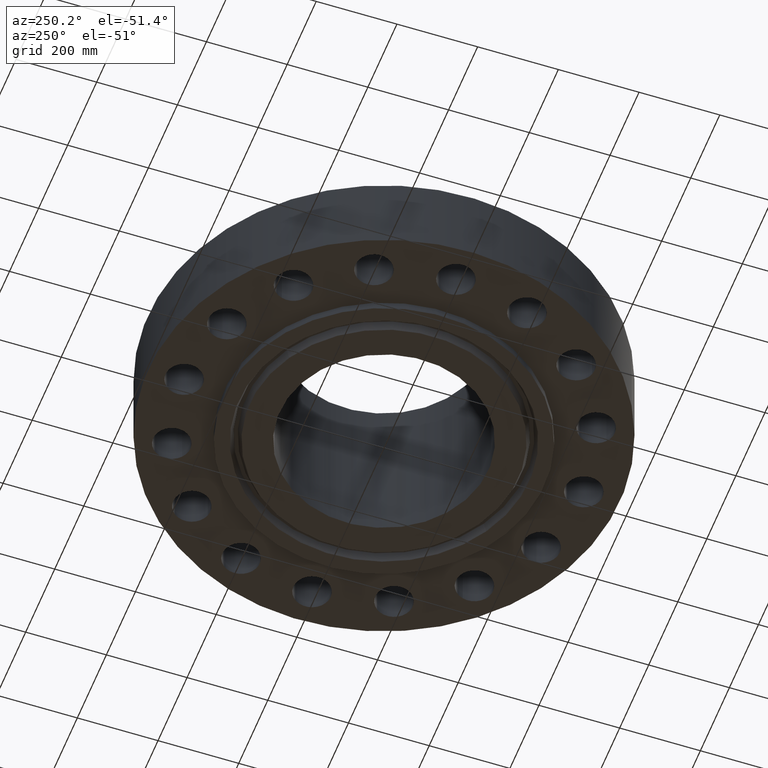
[diagram: clean part render]
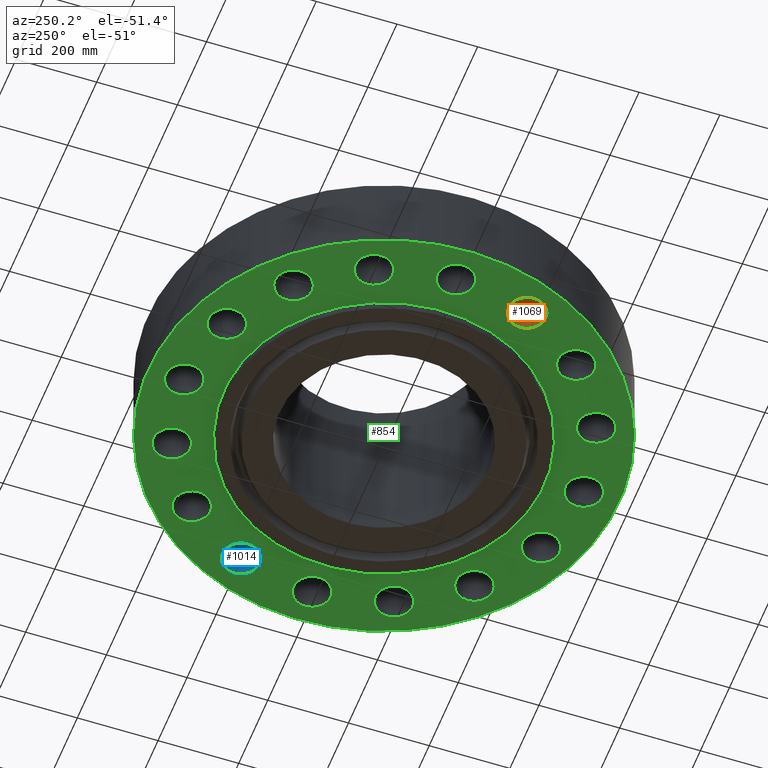
[diagram: same view with three faces highlighted in distinct colors, each labeled with its STEP entity id]
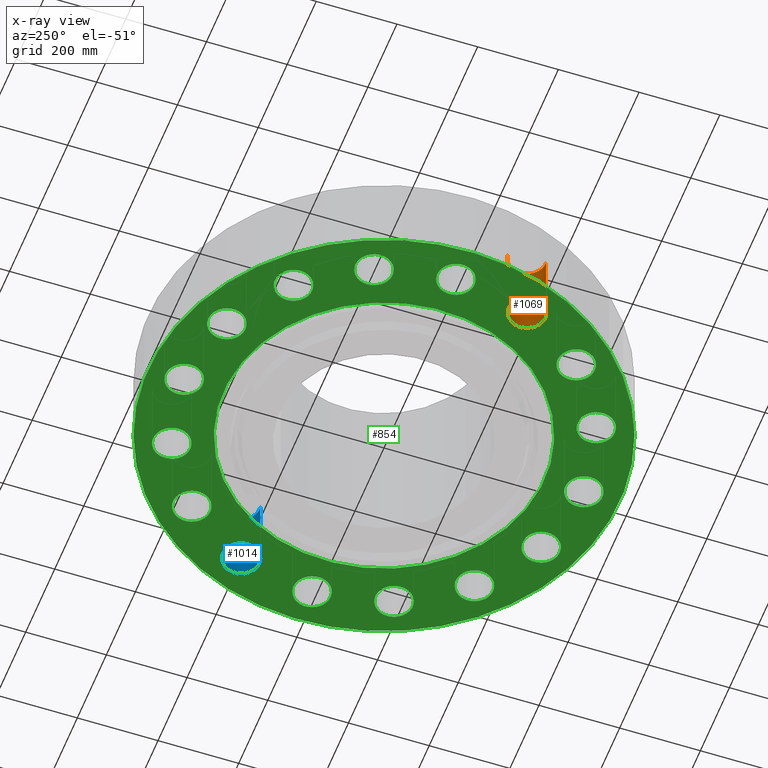
[diagram: x-ray of the same camera — body ghosted, the three highlighted faces saturated]
A machine part, auxiliary view with three faces highlighted in distinct colors.
The next image is the same camera in x-ray (body ghosted, the three faces saturated) — at least one of them is partly hidden behind the body in this view.
Their STEP definitions:

[orange] entity #1069 — the highlighted cylindrical surface (edge-blend (fillet) strip) has radius 46.101 mm, axis along (0, 0, -1).
#775=AXIS2_PLACEMENT_3D('Circle Axis2P3D',#773,#774,$) ;
#1030=AXIS2_PLACEMENT_3D('Cylinder Axis2P3D',#1027,#1028,#1029) ;
#1060=AXIS2_PLACEMENT_3D('Circle Axis2P3D',#1058,#1059,$) ;
#768=CARTESIAN_POINT('Vertex',(-18.210028555,-9.26688846267,0.)) ;
#770=CARTESIAN_POINT('Vertex',(-17.8212732131,-5.65776539962,0.)) ;
#773=CARTESIAN_POINT('Axis2P3D Location',(-18.015650884,-7.46232693115,0.)) ;
#1027=CARTESIAN_POINT('Axis2P3D Location',(-18.015650884,-7.46232693115,7.99606299216)) ;
#1032=CARTESIAN_POINT('Line Origine',(-18.210028555,-9.26688846267,4.00000000002)) ;
#1036=CARTESIAN_POINT('Vertex',(-18.210028555,-9.26688846267,8.00000000003)) ;
#1039=CARTESIAN_POINT('Line Origine',(-17.8212732131,-5.65776539962,4.00000000002)) ;
#1043=CARTESIAN_POINT('Vertex',(-17.8212732131,-5.65776539962,8.00000000003)) ;
#1058=CARTESIAN_POINT('Axis2P3D Location',(-18.015650884,-7.46232693115,8.00000000003)) ;
#774=DIRECTION('Axis2P3D Direction',(0.,0.,-0.0393700787402)) ;
#1028=DIRECTION('Axis2P3D Direction',(0.,0.,-0.0393700787402)) ;
#1029=DIRECTION('Axis2P3D XDirection',(0.00421634391778,0.0391436526652,0.)) ;
#1033=DIRECTION('Vector Direction',(0.,0.,-0.0393700787402)) ;
#1040=DIRECTION('Vector Direction',(0.,0.,-0.0393700787402)) ;
#1059=DIRECTION('Axis2P3D Direction',(0.,0.,-0.0393700787402)) ;
#1034=VECTOR('Line Direction',#1033,0.0393700787402) ;
#1041=VECTOR('Line Direction',#1040,0.0393700787402) ;
#1064=ORIENTED_EDGE('',*,*,#1045,.F.) ;
#1065=ORIENTED_EDGE('',*,*,#777,.T.) ;
#1066=ORIENTED_EDGE('',*,*,#1038,.T.) ;
#1067=ORIENTED_EDGE('',*,*,#1062,.F.) ;
#1069=ADVANCED_FACE('PartBody',(#1068),#1031,.F.) ;
#776=CIRCLE('generated circle',#775,1.81500000001) ;
#1061=CIRCLE('generated circle',#1060,1.81500000001) ;
#1031=CYLINDRICAL_SURFACE('generated cylinder',#1030,1.81500000001) ;
#777=EDGE_CURVE('',#771,#769,#776,.T.) ;
#1038=EDGE_CURVE('',#769,#1037,#1035,.F.) ;
#1045=EDGE_CURVE('',#771,#1044,#1042,.F.) ;
#1062=EDGE_CURVE('',#1044,#1037,#1061,.T.) ;
#1063=EDGE_LOOP('',(#1064,#1065,#1066,#1067)) ;
#1068=FACE_OUTER_BOUND('',#1063,.T.) ;
#1035=LINE('Line',#1032,#1034) ;
#1042=LINE('Line',#1039,#1041) ;
#769=VERTEX_POINT('',#768) ;
#771=VERTEX_POINT('',#770) ;
#1037=VERTEX_POINT('',#1036) ;
#1044=VERTEX_POINT('',#1043) ;

[blue] entity #1014 — the highlighted cylindrical surface (edge-blend (fillet) strip) has radius 46.101 mm, axis along (0, -0, -1).
#622=AXIS2_PLACEMENT_3D('Circle Axis2P3D',#620,#621,$) ;
#987=AXIS2_PLACEMENT_3D('Cylinder Axis2P3D',#984,#985,#986) ;
#1005=AXIS2_PLACEMENT_3D('Circle Axis2P3D',#1003,#1004,$) ;
#620=CARTESIAN_POINT('Axis2P3D Location',(18.015650884,7.46232693115,0.)) ;
#624=CARTESIAN_POINT('Vertex',(18.210028555,9.26688846267,0.)) ;
#626=CARTESIAN_POINT('Vertex',(17.8212732131,5.65776539962,0.)) ;
#984=CARTESIAN_POINT('Axis2P3D Location',(18.015650884,7.46232693115,7.99606299216)) ;
#989=CARTESIAN_POINT('Line Origine',(18.210028555,9.26688846267,4.00000000002)) ;
#993=CARTESIAN_POINT('Vertex',(18.210028555,9.26688846267,8.00000000003)) ;
#996=CARTESIAN_POINT('Line Origine',(17.8212732131,5.65776539962,4.00000000002)) ;
#1000=CARTESIAN_POINT('Vertex',(17.8212732131,5.65776539962,8.00000000003)) ;
#1003=CARTESIAN_POINT('Axis2P3D Location',(18.015650884,7.46232693115,8.00000000003)) ;
#621=DIRECTION('Axis2P3D Direction',(0.,0.,-0.0393700787402)) ;
#985=DIRECTION('Axis2P3D Direction',(0.,-0.,-0.0393700787402)) ;
#986=DIRECTION('Axis2P3D XDirection',(-0.00421634391778,-0.0391436526652,0.)) ;
#990=DIRECTION('Vector Direction',(0.,0.,-0.0393700787402)) ;
#997=DIRECTION('Vector Direction',(0.,0.,-0.0393700787402)) ;
#1004=DIRECTION('Axis2P3D Direction',(0.,-0.,-0.0393700787402)) ;
#991=VECTOR('Line Direction',#990,0.0393700787402) ;
#998=VECTOR('Line Direction',#997,0.0393700787402) ;
#1009=ORIENTED_EDGE('',*,*,#995,.F.) ;
#1010=ORIENTED_EDGE('',*,*,#628,.T.) ;
#1011=ORIENTED_EDGE('',*,*,#1002,.T.) ;
#1012=ORIENTED_EDGE('',*,*,#1007,.F.) ;
#1014=ADVANCED_FACE('PartBody',(#1013),#988,.F.) ;
#623=CIRCLE('generated circle',#622,1.81500000001) ;
#1006=CIRCLE('generated circle',#1005,1.81500000001) ;
#988=CYLINDRICAL_SURFACE('generated cylinder',#987,1.81500000001) ;
#628=EDGE_CURVE('',#625,#627,#623,.T.) ;
#995=EDGE_CURVE('',#625,#994,#992,.F.) ;
#1002=EDGE_CURVE('',#627,#1001,#999,.F.) ;
#1007=EDGE_CURVE('',#994,#1001,#1006,.T.) ;
#1008=EDGE_LOOP('',(#1009,#1010,#1011,#1012)) ;
#1013=FACE_OUTER_BOUND('',#1008,.T.) ;
#992=LINE('Line',#989,#991) ;
#999=LINE('Line',#996,#998) ;
#625=VERTEX_POINT('',#624) ;
#627=VERTEX_POINT('',#626) ;
#994=VERTEX_POINT('',#993) ;
#1001=VERTEX_POINT('',#1000) ;

[green] entity #854 — the highlighted planar face has unit normal (0, 0, -1).
#51=AXIS2_PLACEMENT_3D('Circle Axis2P3D',#49,#50,$) ;
#77=AXIS2_PLACEMENT_3D('Circle Axis2P3D',#75,#76,$) ;
#99=AXIS2_PLACEMENT_3D('Circle Axis2P3D',#97,#98,$) ;
#134=AXIS2_PLACEMENT_3D('Circle Axis2P3D',#132,#133,$) ;
#533=AXIS2_PLACEMENT_3D('Circle Axis2P3D',#531,#532,$) ;
#557=AXIS2_PLACEMENT_3D('Circle Axis2P3D',#555,#556,$) ;
#570=AXIS2_PLACEMENT_3D('Plane Axis2P3D',#567,#568,#569) ;
#586=AXIS2_PLACEMENT_3D('Circle Axis2P3D',#584,#585,$) ;
#595=AXIS2_PLACEMENT_3D('Circle Axis2P3D',#593,#594,$) ;
#604=AXIS2_PLACEMENT_3D('Circle Axis2P3D',#602,#603,$) ;
#613=AXIS2_PLACEMENT_3D('Circle Axis2P3D',#611,#612,$) ;
#622=AXIS2_PLACEMENT_3D('Circle Axis2P3D',#620,#621,$) ;
#631=AXIS2_PLACEMENT_3D('Circle Axis2P3D',#629,#630,$) ;
#640=AXIS2_PLACEMENT_3D('Circle Axis2P3D',#638,#639,$) ;
#649=AXIS2_PLACEMENT_3D('Circle Axis2P3D',#647,#648,$) ;
#658=AXIS2_PLACEMENT_3D('Circle Axis2P3D',#656,#657,$) ;
#667=AXIS2_PLACEMENT_3D('Circle Axis2P3D',#665,#666,$) ;
#676=AXIS2_PLACEMENT_3D('Circle Axis2P3D',#674,#675,$) ;
#685=AXIS2_PLACEMENT_3D('Circle Axis2P3D',#683,#684,$) ;
#694=AXIS2_PLACEMENT_3D('Circle Axis2P3D',#692,#693,$) ;
#703=AXIS2_PLACEMENT_3D('Circle Axis2P3D',#701,#702,$) ;
#712=AXIS2_PLACEMENT_3D('Circle Axis2P3D',#710,#711,$) ;
#721=AXIS2_PLACEMENT_3D('Circle Axis2P3D',#719,#720,$) ;
#730=AXIS2_PLACEMENT_3D('Circle Axis2P3D',#728,#729,$) ;
#739=AXIS2_PLACEMENT_3D('Circle Axis2P3D',#737,#738,$) ;
#748=AXIS2_PLACEMENT_3D('Circle Axis2P3D',#746,#747,$) ;
#757=AXIS2_PLACEMENT_3D('Circle Axis2P3D',#755,#756,$) ;
#766=AXIS2_PLACEMENT_3D('Circle Axis2P3D',#764,#765,$) ;
#775=AXIS2_PLACEMENT_3D('Circle Axis2P3D',#773,#774,$) ;
#784=AXIS2_PLACEMENT_3D('Circle Axis2P3D',#782,#783,$) ;
#793=AXIS2_PLACEMENT_3D('Circle Axis2P3D',#791,#792,$) ;
#802=AXIS2_PLACEMENT_3D('Circle Axis2P3D',#800,#801,$) ;
#811=AXIS2_PLACEMENT_3D('Circle Axis2P3D',#809,#810,$) ;
#820=AXIS2_PLACEMENT_3D('Circle Axis2P3D',#818,#819,$) ;
#829=AXIS2_PLACEMENT_3D('Circle Axis2P3D',#827,#828,$) ;
#838=AXIS2_PLACEMENT_3D('Circle Axis2P3D',#836,#837,$) ;
#847=AXIS2_PLACEMENT_3D('Circle Axis2P3D',#845,#846,$) ;
#44=CARTESIAN_POINT('Vertex',(-1.59281234984,20.3701573526,0.)) ;
#49=CARTESIAN_POINT('Axis2P3D Location',(0.,19.5000000001,0.)) ;
#53=CARTESIAN_POINT('Vertex',(1.59281234984,18.6298426475,0.)) ;
#75=CARTESIAN_POINT('Axis2P3D Location',(0.,19.5000000001,0.)) ;
#97=CARTESIAN_POINT('Axis2P3D Location',(0.,0.,2.23792987641E-015)) ;
#101=CARTESIAN_POINT('Vertex',(-11.0267873879,-20.1843989236,3.35689481461E-015)) ;
#103=CARTESIAN_POINT('Vertex',(11.0267873879,20.1843989236,3.35689481461E-015)) ;
#132=CARTESIAN_POINT('Axis2P3D Location',(0.,0.,2.23792987641E-015)) ;
#528=CARTESIAN_POINT('Vertex',(-7.49102404072,-13.7122275296,3.35689481461E-015)) ;
#531=CARTESIAN_POINT('Axis2P3D Location',(0.,0.,2.23792987641E-015)) ;
#535=CARTESIAN_POINT('Vertex',(7.49102404072,13.7122275296,3.35689481461E-015)) ;
#555=CARTESIAN_POINT('Axis2P3D Location',(0.,0.,2.23792987641E-015)) ;
#567=CARTESIAN_POINT('Axis2P3D Location',(0.,15.6250000001,0.)) ;
#584=CARTESIAN_POINT('Axis2P3D Location',(7.46232693115,18.015650884,0.)) ;
#588=CARTESIAN_POINT('Vertex',(6.32375500438,19.4291143493,0.)) ;
#590=CARTESIAN_POINT('Vertex',(8.60089885792,16.6021874188,0.)) ;
#593=CARTESIAN_POINT('Axis2P3D Location',(7.46232693115,18.015650884,0.)) ;
#602=CARTESIAN_POINT('Axis2P3D Location',(13.7885822332,13.7885822332,0.)) ;
#606=CARTESIAN_POINT('Vertex',(13.2775879842,15.5301648116,0.)) ;
#608=CARTESIAN_POINT('Vertex',(14.2995764822,12.0469996548,0.)) ;
#611=CARTESIAN_POINT('Axis2P3D Location',(13.7885822332,13.7885822332,0.)) ;
#620=CARTESIAN_POINT('Axis2P3D Location',(18.015650884,7.46232693115,0.)) ;
#624=CARTESIAN_POINT('Vertex',(18.210028555,9.26688846267,0.)) ;
#626=CARTESIAN_POINT('Vertex',(17.8212732131,5.65776539962,0.)) ;
#629=CARTESIAN_POINT('Axis2P3D Location',(18.015650884,7.46232693115,0.)) ;
#638=CARTESIAN_POINT('Axis2P3D Location',(19.5000000001,0.,0.)) ;
#642=CARTESIAN_POINT('Vertex',(20.3701573526,1.59281234984,0.)) ;
#644=CARTESIAN_POINT('Vertex',(18.6298426475,-1.59281234984,0.)) ;
#647=CARTESIAN_POINT('Axis2P3D Location',(19.5000000001,0.,0.)) ;
#656=CARTESIAN_POINT('Axis2P3D Location',(18.015650884,-7.46232693115,0.)) ;
#660=CARTESIAN_POINT('Vertex',(19.4291143493,-6.32375500438,0.)) ;
#662=CARTESIAN_POINT('Vertex',(16.6021874188,-8.60089885792,0.)) ;
#665=CARTESIAN_POINT('Axis2P3D Location',(18.015650884,-7.46232693115,0.)) ;
#674=CARTESIAN_POINT('Axis2P3D Location',(13.7885822332,-13.7885822332,0.)) ;
#678=CARTESIAN_POINT('Vertex',(15.5301648116,-13.2775879842,0.)) ;
#680=CARTESIAN_POINT('Vertex',(12.0469996548,-14.2995764822,0.)) ;
#683=CARTESIAN_POINT('Axis2P3D Location',(13.7885822332,-13.7885822332,0.)) ;
#692=CARTESIAN_POINT('Axis2P3D Location',(7.46232693115,-18.015650884,0.)) ;
#696=CARTESIAN_POINT('Vertex',(9.26688846267,-18.210028555,0.)) ;
#698=CARTESIAN_POINT('Vertex',(5.65776539962,-17.8212732131,0.)) ;
#701=CARTESIAN_POINT('Axis2P3D Location',(7.46232693115,-18.015650884,0.)) ;
#710=CARTESIAN_POINT('Axis2P3D Location',(1.81831802458E-015,-19.5000000001,0.)) ;
#714=CARTESIAN_POINT('Vertex',(1.59281234984,-20.3701573526,0.)) ;
#716=CARTESIAN_POINT('Vertex',(-1.59281234984,-18.6298426475,0.)) ;
#719=CARTESIAN_POINT('Axis2P3D Location',(1.67844740731E-015,-19.5000000001,0.)) ;
#728=CARTESIAN_POINT('Axis2P3D Location',(-7.46232693115,-18.015650884,0.)) ;
#732=CARTESIAN_POINT('Vertex',(-6.32375500438,-19.4291143493,0.)) ;
#734=CARTESIAN_POINT('Vertex',(-8.60089885792,-16.6021874188,0.)) ;
#737=CARTESIAN_POINT('Axis2P3D Location',(-7.46232693115,-18.015650884,0.)) ;
#746=CARTESIAN_POINT('Axis2P3D Location',(-13.7885822332,-13.7885822332,0.)) ;
#750=CARTESIAN_POINT('Vertex',(-13.2775879842,-15.5301648116,0.)) ;
#752=CARTESIAN_POINT('Vertex',(-14.2995764822,-12.0469996548,0.)) ;
#755=CARTESIAN_POINT('Axis2P3D Location',(-13.7885822332,-13.7885822332,0.)) ;
#764=CARTESIAN_POINT('Axis2P3D Location',(-18.015650884,-7.46232693115,0.)) ;
#768=CARTESIAN_POINT('Vertex',(-18.210028555,-9.26688846267,0.)) ;
#770=CARTESIAN_POINT('Vertex',(-17.8212732131,-5.65776539962,0.)) ;
#773=CARTESIAN_POINT('Axis2P3D Location',(-18.015650884,-7.46232693115,0.)) ;
#782=CARTESIAN_POINT('Axis2P3D Location',(-19.5000000001,-4.47585975282E-015,0.)) ;
#786=CARTESIAN_POINT('Vertex',(-20.3701573526,-1.59281234984,0.)) ;
#788=CARTESIAN_POINT('Vertex',(-18.6298426475,1.59281234984,0.)) ;
#791=CARTESIAN_POINT('Axis2P3D Location',(-19.5000000001,-4.47585975282E-015,0.)) ;
#800=CARTESIAN_POINT('Axis2P3D Location',(-18.015650884,7.46232693115,0.)) ;
#804=CARTESIAN_POINT('Vertex',(-19.4291143493,6.32375500438,0.)) ;
#806=CARTESIAN_POINT('Vertex',(-16.6021874188,8.60089885792,-6.71378962923E-015)) ;
#809=CARTESIAN_POINT('Axis2P3D Location',(-18.015650884,7.46232693115,0.)) ;
#818=CARTESIAN_POINT('Axis2P3D Location',(-13.7885822332,13.7885822332,0.)) ;
#822=CARTESIAN_POINT('Vertex',(-15.5301648116,13.2775879842,0.)) ;
#824=CARTESIAN_POINT('Vertex',(-12.0469996548,14.2995764822,0.)) ;
#827=CARTESIAN_POINT('Axis2P3D Location',(-13.7885822332,13.7885822332,0.)) ;
#836=CARTESIAN_POINT('Axis2P3D Location',(-7.46232693115,18.015650884,0.)) ;
#840=CARTESIAN_POINT('Vertex',(-9.26688846267,18.210028555,0.)) ;
#842=CARTESIAN_POINT('Vertex',(-5.65776539962,17.8212732131,0.)) ;
#845=CARTESIAN_POINT('Axis2P3D Location',(-7.46232693115,18.015650884,0.)) ;
#50=DIRECTION('Axis2P3D Direction',(0.,-0.,-0.0393700787402)) ;
#76=DIRECTION('Axis2P3D Direction',(0.,-0.,-0.0393700787402)) ;
#98=DIRECTION('Axis2P3D Direction',(0.,0.,-0.0393700787402)) ;
#133=DIRECTION('Axis2P3D Direction',(0.,0.,-0.0393700787402)) ;
#532=DIRECTION('Axis2P3D Direction',(0.,0.,-0.0393700787402)) ;
#556=DIRECTION('Axis2P3D Direction',(0.,0.,-0.0393700787402)) ;
#568=DIRECTION('Axis2P3D Direction',(0.,0.,-0.0393700787402)) ;
#569=DIRECTION('Axis2P3D XDirection',(0.0393700787402,0.,0.)) ;
#585=DIRECTION('Axis2P3D Direction',(0.,0.,-0.0393700787402)) ;
#594=DIRECTION('Axis2P3D Direction',(0.,0.,-0.0393700787402)) ;
#603=DIRECTION('Axis2P3D Direction',(0.,0.,-0.0393700787402)) ;
#612=DIRECTION('Axis2P3D Direction',(0.,0.,-0.0393700787402)) ;
#621=DIRECTION('Axis2P3D Direction',(0.,0.,-0.0393700787402)) ;
#630=DIRECTION('Axis2P3D Direction',(0.,0.,-0.0393700787402)) ;
#639=DIRECTION('Axis2P3D Direction',(0.,0.,-0.0393700787402)) ;
#648=DIRECTION('Axis2P3D Direction',(0.,0.,-0.0393700787402)) ;
#657=DIRECTION('Axis2P3D Direction',(0.,0.,-0.0393700787402)) ;
#666=DIRECTION('Axis2P3D Direction',(0.,0.,-0.0393700787402)) ;
#675=DIRECTION('Axis2P3D Direction',(0.,0.,-0.0393700787402)) ;
#684=DIRECTION('Axis2P3D Direction',(0.,0.,-0.0393700787402)) ;
#693=DIRECTION('Axis2P3D Direction',(0.,0.,-0.0393700787402)) ;
#702=DIRECTION('Axis2P3D Direction',(0.,0.,-0.0393700787402)) ;
#711=DIRECTION('Axis2P3D Direction',(0.,0.,-0.0393700787402)) ;
#720=DIRECTION('Axis2P3D Direction',(0.,0.,-0.0393700787402)) ;
#729=DIRECTION('Axis2P3D Direction',(0.,0.,-0.0393700787402)) ;
#738=DIRECTION('Axis2P3D Direction',(0.,0.,-0.0393700787402)) ;
#747=DIRECTION('Axis2P3D Direction',(0.,0.,-0.0393700787402)) ;
#756=DIRECTION('Axis2P3D Direction',(0.,0.,-0.0393700787402)) ;
#765=DIRECTION('Axis2P3D Direction',(0.,0.,-0.0393700787402)) ;
#774=DIRECTION('Axis2P3D Direction',(0.,0.,-0.0393700787402)) ;
#783=DIRECTION('Axis2P3D Direction',(0.,0.,-0.0393700787402)) ;
#792=DIRECTION('Axis2P3D Direction',(0.,0.,-0.0393700787402)) ;
#801=DIRECTION('Axis2P3D Direction',(0.,0.,-0.0393700787402)) ;
#810=DIRECTION('Axis2P3D Direction',(0.,0.,-0.0393700787402)) ;
#819=DIRECTION('Axis2P3D Direction',(0.,0.,-0.0393700787402)) ;
#828=DIRECTION('Axis2P3D Direction',(0.,0.,-0.0393700787402)) ;
#837=DIRECTION('Axis2P3D Direction',(0.,0.,-0.0393700787402)) ;
#846=DIRECTION('Axis2P3D Direction',(0.,0.,-0.0393700787402)) ;
#573=ORIENTED_EDGE('',*,*,#105,.T.) ;
#574=ORIENTED_EDGE('',*,*,#136,.T.) ;
#577=ORIENTED_EDGE('',*,*,#79,.F.) ;
#578=ORIENTED_EDGE('',*,*,#55,.F.) ;
#581=ORIENTED_EDGE('',*,*,#559,.F.) ;
#582=ORIENTED_EDGE('',*,*,#537,.F.) ;
#599=ORIENTED_EDGE('',*,*,#592,.F.) ;
#600=ORIENTED_EDGE('',*,*,#597,.F.) ;
#617=ORIENTED_EDGE('',*,*,#610,.F.) ;
#618=ORIENTED_EDGE('',*,*,#615,.F.) ;
#635=ORIENTED_EDGE('',*,*,#628,.F.) ;
#636=ORIENTED_EDGE('',*,*,#633,.F.) ;
#653=ORIENTED_EDGE('',*,*,#646,.F.) ;
#654=ORIENTED_EDGE('',*,*,#651,.F.) ;
#671=ORIENTED_EDGE('',*,*,#664,.F.) ;
#672=ORIENTED_EDGE('',*,*,#669,.F.) ;
#689=ORIENTED_EDGE('',*,*,#682,.F.) ;
#690=ORIENTED_EDGE('',*,*,#687,.F.) ;
#707=ORIENTED_EDGE('',*,*,#700,.F.) ;
#708=ORIENTED_EDGE('',*,*,#705,.F.) ;
#725=ORIENTED_EDGE('',*,*,#718,.F.) ;
#726=ORIENTED_EDGE('',*,*,#723,.F.) ;
#743=ORIENTED_EDGE('',*,*,#736,.F.) ;
#744=ORIENTED_EDGE('',*,*,#741,.F.) ;
#761=ORIENTED_EDGE('',*,*,#754,.F.) ;
#762=ORIENTED_EDGE('',*,*,#759,.F.) ;
#779=ORIENTED_EDGE('',*,*,#772,.F.) ;
#780=ORIENTED_EDGE('',*,*,#777,.F.) ;
#797=ORIENTED_EDGE('',*,*,#790,.F.) ;
#798=ORIENTED_EDGE('',*,*,#795,.F.) ;
#815=ORIENTED_EDGE('',*,*,#808,.F.) ;
#816=ORIENTED_EDGE('',*,*,#813,.F.) ;
#833=ORIENTED_EDGE('',*,*,#826,.F.) ;
#834=ORIENTED_EDGE('',*,*,#831,.F.) ;
#851=ORIENTED_EDGE('',*,*,#844,.F.) ;
#852=ORIENTED_EDGE('',*,*,#849,.F.) ;
#579=FACE_BOUND('',#576,.T.) ;
#583=FACE_BOUND('',#580,.T.) ;
#601=FACE_BOUND('',#598,.T.) ;
#619=FACE_BOUND('',#616,.T.) ;
#637=FACE_BOUND('',#634,.T.) ;
#655=FACE_BOUND('',#652,.T.) ;
#673=FACE_BOUND('',#670,.T.) ;
#691=FACE_BOUND('',#688,.T.) ;
#709=FACE_BOUND('',#706,.T.) ;
#727=FACE_BOUND('',#724,.T.) ;
#745=FACE_BOUND('',#742,.T.) ;
#763=FACE_BOUND('',#760,.T.) ;
#781=FACE_BOUND('',#778,.T.) ;
#799=FACE_BOUND('',#796,.T.) ;
#817=FACE_BOUND('',#814,.T.) ;
#835=FACE_BOUND('',#832,.T.) ;
#853=FACE_BOUND('',#850,.T.) ;
#854=ADVANCED_FACE('PartBody',(#575,#579,#583,#601,#619,#637,#655,#673,#691,#709,#727,#745,#763,#781,#799,#817,#835,#853),#571,.T.) ;
#52=CIRCLE('generated circle',#51,1.81500000001) ;
#78=CIRCLE('generated circle',#77,1.81500000001) ;
#100=CIRCLE('generated circle',#99,23.0000000001) ;
#135=CIRCLE('generated circle',#134,23.0000000001) ;
#534=CIRCLE('generated circle',#533,15.6250000001) ;
#558=CIRCLE('generated circle',#557,15.6250000001) ;
#587=CIRCLE('generated circle',#586,1.81500000001) ;
#596=CIRCLE('generated circle',#595,1.81500000001) ;
#605=CIRCLE('generated circle',#604,1.81500000001) ;
#614=CIRCLE('generated circle',#613,1.81500000001) ;
#623=CIRCLE('generated circle',#622,1.81500000001) ;
#632=CIRCLE('generated circle',#631,1.81500000001) ;
#641=CIRCLE('generated circle',#640,1.81500000001) ;
#650=CIRCLE('generated circle',#649,1.81500000001) ;
#659=CIRCLE('generated circle',#658,1.81500000001) ;
#668=CIRCLE('generated circle',#667,1.81500000001) ;
#677=CIRCLE('generated circle',#676,1.81500000001) ;
#686=CIRCLE('generated circle',#685,1.81500000001) ;
#695=CIRCLE('generated circle',#694,1.81500000001) ;
#704=CIRCLE('generated circle',#703,1.81500000001) ;
#713=CIRCLE('generated circle',#712,1.81500000001) ;
#722=CIRCLE('generated circle',#721,1.81500000001) ;
#731=CIRCLE('generated circle',#730,1.81500000001) ;
#740=CIRCLE('generated circle',#739,1.81500000001) ;
#749=CIRCLE('generated circle',#748,1.81500000001) ;
#758=CIRCLE('generated circle',#757,1.81500000001) ;
#767=CIRCLE('generated circle',#766,1.81500000001) ;
#776=CIRCLE('generated circle',#775,1.81500000001) ;
#785=CIRCLE('generated circle',#784,1.81500000001) ;
#794=CIRCLE('generated circle',#793,1.81500000001) ;
#803=CIRCLE('generated circle',#802,1.81500000001) ;
#812=CIRCLE('generated circle',#811,1.81500000001) ;
#821=CIRCLE('generated circle',#820,1.81500000001) ;
#830=CIRCLE('generated circle',#829,1.81500000001) ;
#839=CIRCLE('generated circle',#838,1.81500000001) ;
#848=CIRCLE('generated circle',#847,1.81500000001) ;
#55=EDGE_CURVE('',#45,#54,#52,.T.) ;
#79=EDGE_CURVE('',#54,#45,#78,.T.) ;
#105=EDGE_CURVE('',#102,#104,#100,.T.) ;
#136=EDGE_CURVE('',#104,#102,#135,.T.) ;
#537=EDGE_CURVE('',#529,#536,#534,.T.) ;
#559=EDGE_CURVE('',#536,#529,#558,.T.) ;
#592=EDGE_CURVE('',#589,#591,#587,.T.) ;
#597=EDGE_CURVE('',#591,#589,#596,.T.) ;
#610=EDGE_CURVE('',#607,#609,#605,.T.) ;
#615=EDGE_CURVE('',#609,#607,#614,.T.) ;
#628=EDGE_CURVE('',#625,#627,#623,.T.) ;
#633=EDGE_CURVE('',#627,#625,#632,.T.) ;
#646=EDGE_CURVE('',#643,#645,#641,.T.) ;
#651=EDGE_CURVE('',#645,#643,#650,.T.) ;
#664=EDGE_CURVE('',#661,#663,#659,.T.) ;
#669=EDGE_CURVE('',#663,#661,#668,.T.) ;
#682=EDGE_CURVE('',#679,#681,#677,.T.) ;
#687=EDGE_CURVE('',#681,#679,#686,.T.) ;
#700=EDGE_CURVE('',#697,#699,#695,.T.) ;
#705=EDGE_CURVE('',#699,#697,#704,.T.) ;
#718=EDGE_CURVE('',#715,#717,#713,.T.) ;
#723=EDGE_CURVE('',#717,#715,#722,.T.) ;
#736=EDGE_CURVE('',#733,#735,#731,.T.) ;
#741=EDGE_CURVE('',#735,#733,#740,.T.) ;
#754=EDGE_CURVE('',#751,#753,#749,.T.) ;
#759=EDGE_CURVE('',#753,#751,#758,.T.) ;
#772=EDGE_CURVE('',#769,#771,#767,.T.) ;
#777=EDGE_CURVE('',#771,#769,#776,.T.) ;
#790=EDGE_CURVE('',#787,#789,#785,.T.) ;
#795=EDGE_CURVE('',#789,#787,#794,.T.) ;
#808=EDGE_CURVE('',#805,#807,#803,.T.) ;
#813=EDGE_CURVE('',#807,#805,#812,.T.) ;
#826=EDGE_CURVE('',#823,#825,#821,.T.) ;
#831=EDGE_CURVE('',#825,#823,#830,.T.) ;
#844=EDGE_CURVE('',#841,#843,#839,.T.) ;
#849=EDGE_CURVE('',#843,#841,#848,.T.) ;
#572=EDGE_LOOP('',(#573,#574)) ;
#576=EDGE_LOOP('',(#577,#578)) ;
#580=EDGE_LOOP('',(#581,#582)) ;
#598=EDGE_LOOP('',(#599,#600)) ;
#616=EDGE_LOOP('',(#617,#618)) ;
#634=EDGE_LOOP('',(#635,#636)) ;
#652=EDGE_LOOP('',(#653,#654)) ;
#670=EDGE_LOOP('',(#671,#672)) ;
#688=EDGE_LOOP('',(#689,#690)) ;
#706=EDGE_LOOP('',(#707,#708)) ;
#724=EDGE_LOOP('',(#725,#726)) ;
#742=EDGE_LOOP('',(#743,#744)) ;
#760=EDGE_LOOP('',(#761,#762)) ;
#778=EDGE_LOOP('',(#779,#780)) ;
#796=EDGE_LOOP('',(#797,#798)) ;
#814=EDGE_LOOP('',(#815,#816)) ;
#832=EDGE_LOOP('',(#833,#834)) ;
#850=EDGE_LOOP('',(#851,#852)) ;
#575=FACE_OUTER_BOUND('',#572,.T.) ;
#571=PLANE('',#570) ;
#45=VERTEX_POINT('',#44) ;
#54=VERTEX_POINT('',#53) ;
#102=VERTEX_POINT('',#101) ;
#104=VERTEX_POINT('',#103) ;
#529=VERTEX_POINT('',#528) ;
#536=VERTEX_POINT('',#535) ;
#589=VERTEX_POINT('',#588) ;
#591=VERTEX_POINT('',#590) ;
#607=VERTEX_POINT('',#606) ;
#609=VERTEX_POINT('',#608) ;
#625=VERTEX_POINT('',#624) ;
#627=VERTEX_POINT('',#626) ;
#643=VERTEX_POINT('',#642) ;
#645=VERTEX_POINT('',#644) ;
#661=VERTEX_POINT('',#660) ;
#663=VERTEX_POINT('',#662) ;
#679=VERTEX_POINT('',#678) ;
#681=VERTEX_POINT('',#680) ;
#697=VERTEX_POINT('',#696) ;
#699=VERTEX_POINT('',#698) ;
#715=VERTEX_POINT('',#714) ;
#717=VERTEX_POINT('',#716) ;
#733=VERTEX_POINT('',#732) ;
#735=VERTEX_POINT('',#734) ;
#751=VERTEX_POINT('',#750) ;
#753=VERTEX_POINT('',#752) ;
#769=VERTEX_POINT('',#768) ;
#771=VERTEX_POINT('',#770) ;
#787=VERTEX_POINT('',#786) ;
#789=VERTEX_POINT('',#788) ;
#805=VERTEX_POINT('',#804) ;
#807=VERTEX_POINT('',#806) ;
#823=VERTEX_POINT('',#822) ;
#825=VERTEX_POINT('',#824) ;
#841=VERTEX_POINT('',#840) ;
#843=VERTEX_POINT('',#842) ;